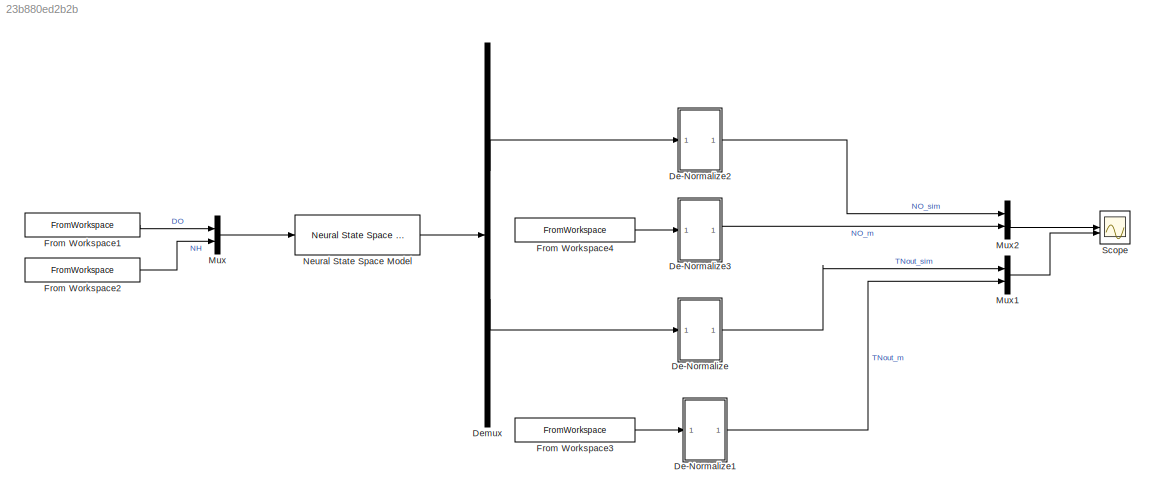
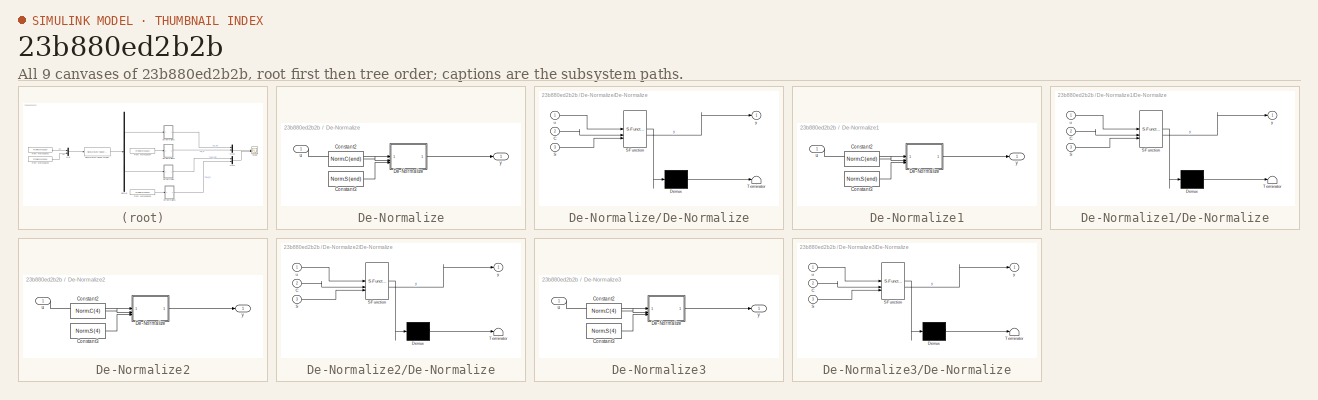
[diagram: thumbnail index - all 9 canvases of the model, root first then tree order]
MODEL slx_23b880ed2b2b
KIND model
CONFIG AbsTol = auto
CONFIG EnableMultiTasking = off
CONFIG FixedStep = 0.0104
CONFIG InitFcn = Init_TestModel;
CONFIG MaxStep = auto
CONFIG MinStep = auto
CONFIG RelTol = 1e-3
CONFIG SampleTimeConstraint = Unconstrained
CONFIG SolverName = ode45
CONFIG StartFcn = Init_TestModel;
CONFIG StartTime = 0.0
CONFIG StopTime = 7
BLOCK [SubSystem] De-Normalize
BLOCK [Constant] De-Normalize/Constant2
  Value = Norm.C(end)
BLOCK [Constant] De-Normalize/Constant3
  Value = Norm.S(end)
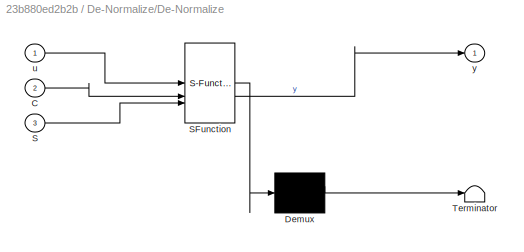
BLOCK [SubSystem] De-Normalize/De-Normalize
  ErrorFcn = Stateflow.Translate.translate
  PermitHierarchicalResolution = ExplicitOnly
  SFBlockType = MATLAB Function
  TreatAsAtomicUnit = on
BLOCK [Demux] De-Normalize/De-Normalize/ Demux 
  Outputs = 1
BLOCK [S-Function] De-Normalize/De-Normalize/ SFunction 
  EnableBusSupport = on
  FunctionName = sf_sfun
  PortCounts = [3 2]
  SFcnIsStateOwnerBlock = off
  SFunctionDeploymentMode = off
  Tag = Stateflow S-Function 3
BLOCK [Terminator] De-Normalize/De-Normalize/ Terminator 
BLOCK [Inport] De-Normalize/De-Normalize/C
  Port = 2
BLOCK [Inport] De-Normalize/De-Normalize/S
  Port = 3
BLOCK [Inport] De-Normalize/De-Normalize/u
BLOCK [Outport] De-Normalize/De-Normalize/y
BLOCK [Inport] De-Normalize/u
BLOCK [Outport] De-Normalize/y
BLOCK [SubSystem] De-Normalize1
BLOCK [Constant] De-Normalize1/Constant2
  Value = Norm.C(end)
BLOCK [Constant] De-Normalize1/Constant3
  Value = Norm.S(end)
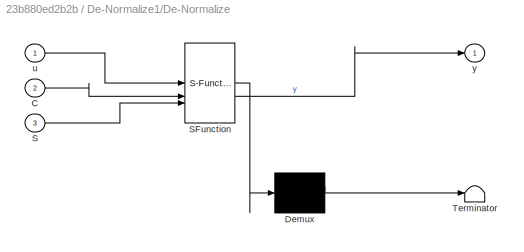
BLOCK [SubSystem] De-Normalize1/De-Normalize
  ErrorFcn = Stateflow.Translate.translate
  PermitHierarchicalResolution = ExplicitOnly
  SFBlockType = MATLAB Function
  TreatAsAtomicUnit = on
BLOCK [Demux] De-Normalize1/De-Normalize/ Demux 
  Outputs = 1
BLOCK [S-Function] De-Normalize1/De-Normalize/ SFunction 
  EnableBusSupport = on
  FunctionName = sf_sfun
  PortCounts = [3 2]
  SFcnIsStateOwnerBlock = off
  SFunctionDeploymentMode = off
  Tag = Stateflow S-Function 4
BLOCK [Terminator] De-Normalize1/De-Normalize/ Terminator 
BLOCK [Inport] De-Normalize1/De-Normalize/C
  Port = 2
BLOCK [Inport] De-Normalize1/De-Normalize/S
  Port = 3
BLOCK [Inport] De-Normalize1/De-Normalize/u
BLOCK [Outport] De-Normalize1/De-Normalize/y
BLOCK [Inport] De-Normalize1/u
BLOCK [Outport] De-Normalize1/y
BLOCK [SubSystem] De-Normalize2
BLOCK [Constant] De-Normalize2/Constant2
  Value = Norm.C(4)
BLOCK [Constant] De-Normalize2/Constant3
  Value = Norm.S(4)
BLOCK [SubSystem] De-Normalize2/De-Normalize
  ErrorFcn = Stateflow.Translate.translate
  PermitHierarchicalResolution = ExplicitOnly
  SFBlockType = MATLAB Function
  TreatAsAtomicUnit = on
BLOCK [Demux] De-Normalize2/De-Normalize/ Demux 
  Outputs = 1
BLOCK [S-Function] De-Normalize2/De-Normalize/ SFunction 
  EnableBusSupport = on
  FunctionName = sf_sfun
  PortCounts = [3 2]
  SFcnIsStateOwnerBlock = off
  SFunctionDeploymentMode = off
  Tag = Stateflow S-Function 1
BLOCK [Terminator] De-Normalize2/De-Normalize/ Terminator 
BLOCK [Inport] De-Normalize2/De-Normalize/C
  Port = 2
BLOCK [Inport] De-Normalize2/De-Normalize/S
  Port = 3
BLOCK [Inport] De-Normalize2/De-Normalize/u
BLOCK [Outport] De-Normalize2/De-Normalize/y
BLOCK [Inport] De-Normalize2/u
BLOCK [Outport] De-Normalize2/y
BLOCK [SubSystem] De-Normalize3
BLOCK [Constant] De-Normalize3/Constant2
  Value = Norm.C(4)
BLOCK [Constant] De-Normalize3/Constant3
  Value = Norm.S(4)
BLOCK [SubSystem] De-Normalize3/De-Normalize
  ErrorFcn = Stateflow.Translate.translate
  PermitHierarchicalResolution = ExplicitOnly
  SFBlockType = MATLAB Function
  TreatAsAtomicUnit = on
BLOCK [Demux] De-Normalize3/De-Normalize/ Demux 
  Outputs = 1
BLOCK [S-Function] De-Normalize3/De-Normalize/ SFunction 
  EnableBusSupport = on
  FunctionName = sf_sfun
  PortCounts = [3 2]
  SFcnIsStateOwnerBlock = off
  SFunctionDeploymentMode = off
  Tag = Stateflow S-Function 2
BLOCK [Terminator] De-Normalize3/De-Normalize/ Terminator 
BLOCK [Inport] De-Normalize3/De-Normalize/C
  Port = 2
BLOCK [Inport] De-Normalize3/De-Normalize/S
  Port = 3
BLOCK [Inport] De-Normalize3/De-Normalize/u
BLOCK [Outport] De-Normalize3/De-Normalize/y
BLOCK [Inport] De-Normalize3/u
BLOCK [Outport] De-Normalize3/y
BLOCK [Demux] Demux
  Outputs = 2
BLOCK [FromWorkspace] From Workspace1
  VariableName = [DataRep(:,1),DataRep(:,2)]
BLOCK [FromWorkspace] From Workspace2
  VariableName = [DataRep(:,1),DataRep(:,3)]
BLOCK [FromWorkspace] From Workspace3
  VariableName = [DataRep(:,1),DataRep(:,end)]
BLOCK [FromWorkspace] From Workspace4
  VariableName = [DataRep(:,1),DataRep(:,4)]
BLOCK [Mux] Mux
  DisplayOption = bar
  Inputs = 2
BLOCK [Mux] Mux1
  DisplayOption = bar
  Inputs = 2
BLOCK [Mux] Mux2
  DisplayOption = bar
  Inputs = 2
BLOCK [Reference] Neural State Space Model  REF=slident/Models/Neural State Space Model  (lib defined in mdl_f7d4911ca73a)
  SourceBlock = slident/Models/Neural State Space Model
  SourceType = Neural State Space Model
BLOCK [Scope] Scope
  Floating = off
  NumInputPorts = 2
  ScopeSpecificationString = Simulink.scopes.TimeScopeBlockCfg('CurrentConfiguration', extmgr.ConfigurationSet(extmgr.Configuration('Core','General UI',true),extmgr.Configuration('Core','Source UI',true),extmgr.Configuration('Sources','WiredSimulink',true),extmgr.Configuration('Visuals','Time Domain',true,'SerializedDisplays',{struct('MinYLimReal','0.28478','MaxYLimReal','9.04614','YLabelReal','','MinYLimMag','0.28478','MaxYL...<+2060ch>
LINE De-Normalize/Constant2:1 -> De-Normalize/De-Normalize:2
LINE De-Normalize/Constant3:1 -> De-Normalize/De-Normalize:3
LINE De-Normalize/De-Normalize:1 -> De-Normalize/y:1
LINE De-Normalize/u:1 -> De-Normalize/De-Normalize:1
LINE De-Normalize1/Constant2:1 -> De-Normalize1/De-Normalize:2
LINE De-Normalize1/Constant3:1 -> De-Normalize1/De-Normalize:3
LINE De-Normalize1/De-Normalize:1 -> De-Normalize1/y:1
LINE De-Normalize1/u:1 -> De-Normalize1/De-Normalize:1
LINE De-Normalize1:1 -> Mux1:2
LINE De-Normalize2/Constant2:1 -> De-Normalize2/De-Normalize:2
LINE De-Normalize2/Constant3:1 -> De-Normalize2/De-Normalize:3
LINE De-Normalize2/De-Normalize:1 -> De-Normalize2/y:1
LINE De-Normalize2/u:1 -> De-Normalize2/De-Normalize:1
LINE De-Normalize2:1 -> Mux2:1
LINE De-Normalize3/Constant2:1 -> De-Normalize3/De-Normalize:2
LINE De-Normalize3/Constant3:1 -> De-Normalize3/De-Normalize:3
LINE De-Normalize3/De-Normalize:1 -> De-Normalize3/y:1
LINE De-Normalize3/u:1 -> De-Normalize3/De-Normalize:1
LINE De-Normalize3:1 -> Mux2:2
LINE De-Normalize:1 -> Mux1:1
LINE Demux:1 -> De-Normalize2:1
LINE Demux:2 -> De-Normalize:1
LINE From Workspace1:1 -> Mux:1
LINE From Workspace2:1 -> Mux:2
LINE From Workspace3:1 -> De-Normalize1:1
LINE From Workspace4:1 -> De-Normalize3:1
LINE Mux1:1 -> Scope:2
LINE Mux2:1 -> Scope:1
LINE Mux:1 -> Neural State Space Model:1
LINE Neural State Space Model:1 -> Demux:1
CHART De-Normalize3/De-Normalize states=1 transitions=1
  STATE_LABEL 'eML_blk_kernel()'
  STATE_LABEL 'SCRIPT:\nfunction y = fcn(u,C,S)\n\ny = u * S + C;\n\nend'
CHART De-Normalize/De-Normalize states=1 transitions=1
  STATE_LABEL 'eML_blk_kernel()'
  STATE_LABEL 'SCRIPT:\nfunction y = fcn(u,C,S)\n\ny = u * S + C;\n\nend'
CHART De-Normalize1/De-Normalize states=1 transitions=1
  STATE_LABEL 'eML_blk_kernel()'
  STATE_LABEL 'SCRIPT:\nfunction y = fcn(u,C,S)\n\ny = u * S + C;\n\nend'
CHART De-Normalize2/De-Normalize states=1 transitions=1
  STATE_LABEL 'eML_blk_kernel()'
  STATE_LABEL 'SCRIPT:\nfunction y = fcn(u,C,S)\n\ny = u * S + C;\n\nend'
CHART  states=0 transitions=0
CHART  states=0 transitions=0
CHART  states=0 transitions=0
CHART  states=0 transitions=0
